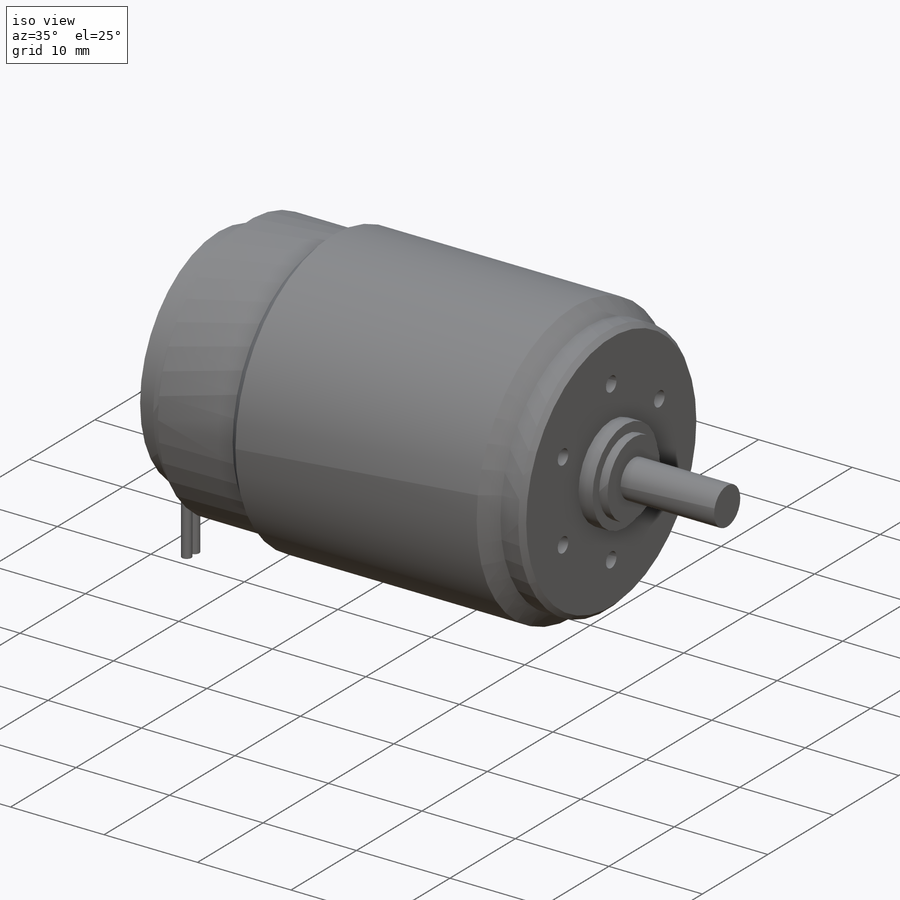
[diagram: iso view]
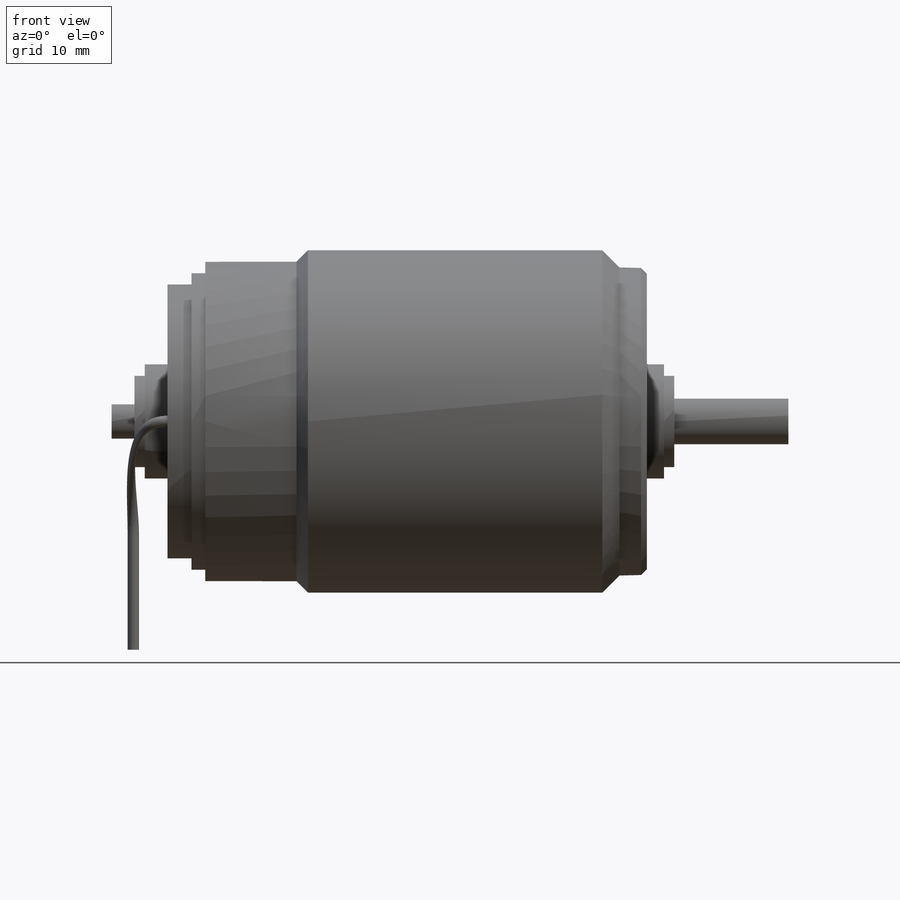
[diagram: front view]
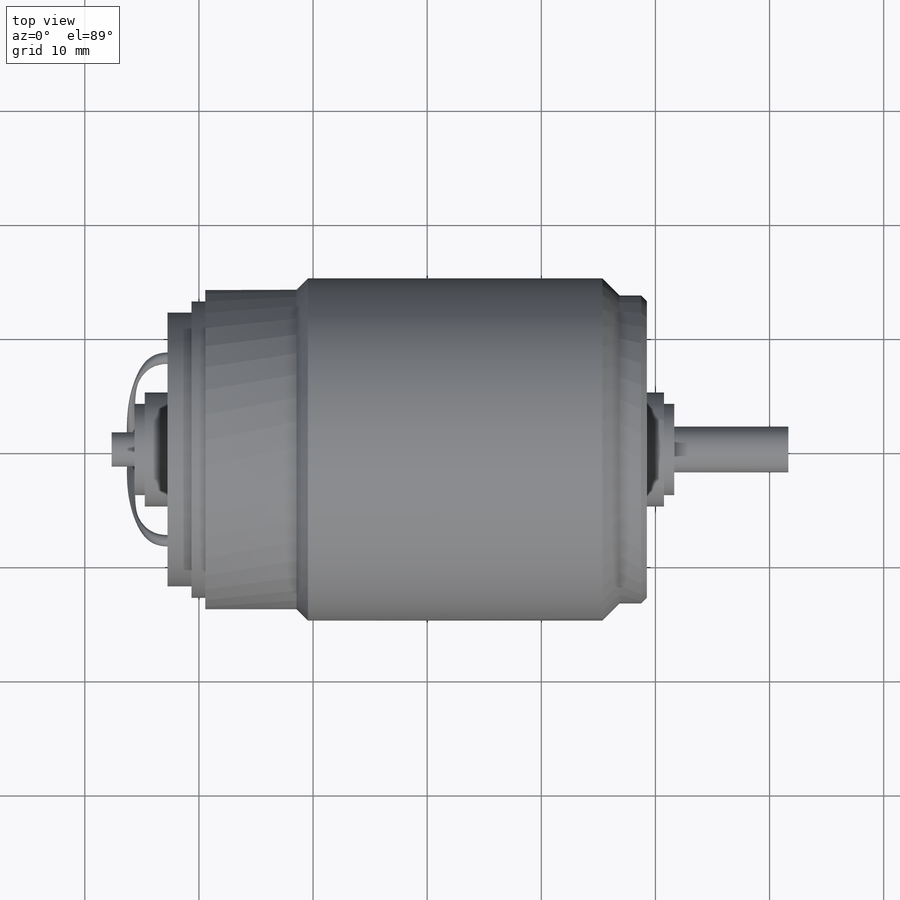
[diagram: top view]
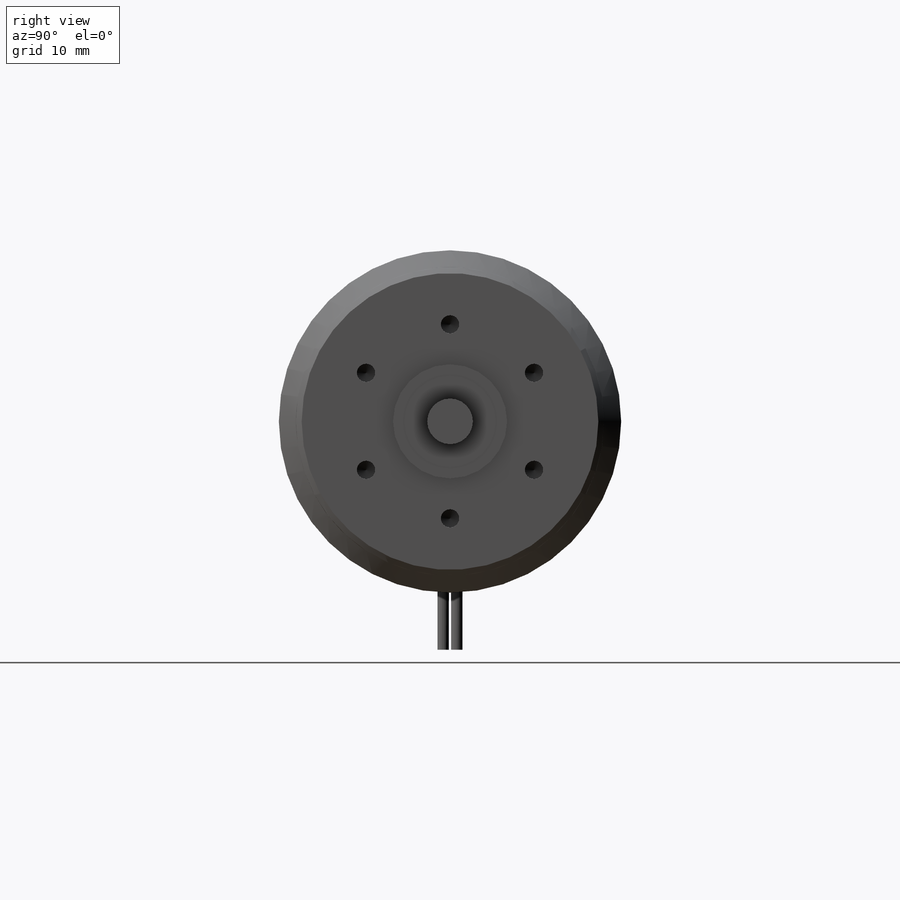
[diagram: right view]
SOLIDWORKS PART (.sldprt)
format: sldprt  version: not decoded by parser v0  size: 507,904 bytes
history: native  units: mm
features: sketch x8, plane x4, chamfer x3, pattern_circular x3, hole x2, thread x2, material x1, revolve x1, cut_extrude x1, extrude x1, mirror x1 (+8 scaffold rows collapsed)
feature tree (35):
  scaffold x8  (default folders/planes/origin — collapsed)
  material  "Matériau <non spécifié>"
  plane  "Plan de face"
  plane  "Plan de dessus"
  plane  "Plan de droite"
  sketch  "Esquisse1"  dims[c1.D1=28.3mm c1.D2=2.4mm c1.D3=1.5mm c1.D4=10.0mm c1.D5=2.4mm c1.D6=11.3mm c1.D7=2.0mm c1.D8=6.0mm c1.D9=8.9mm c1.D10=5.0mm c1.D11=1.2mm c1.D12=8.0mm c2.D10=4.0mm c2.D13=8.0mm c2.D14=10.0mm c2.D15=27.0mm c2.D16=30.0mm c2.D17=3.0mm c2.D18=8.0mm c2.D19=10.0mm c2.D20=24.0mm c2.D21=26.0mm c2.D22=28.0mm]
  revolve  "Révolution1"  Angle=360deg
  chamfer  "Chanfrein1"  Distance=1mm Angle=45deg
  chamfer  "Chanfrein2"  Distance=1.5mm Angle=45deg
  chamfer  "Chanfrein3"  Distance=0.5mm Angle=45deg
  hole  "Trou taraudé M21"  Diameter=1.6mm Depth=4.7mm
  sketch  "Esquisse3D1"  dims[D1=8.5mm]
  sketch  "Esquisse2"  dims[hole-wizard template sketch: 47 standard entries collapsed; hole parameters kept: c15.Profondeur du trou pour taraudage=4.7mm c15.D3=~14.816244mm c15.Angle de pointe=118.0deg]
  thread  "Filetage de perçage1"  Diameter=3.5mm  [1 undecoded]
  pattern_circular  "Répétition circulaire1"  Count=6 Angle=60deg
  hole  "Trou taraudé M22"  [1 undecoded]
  thread  "Esquisse3D2"  Diameter=10mm  [1 undecoded]
  sketch  "Esquisse3"  dims[hole-wizard template sketch: 50 standard entries collapsed; hole parameters above]
  pattern_circular  "Filetage de perçage2"  [2 undecoded]
  pattern_circular  "Filetage de perçage3"  [2 undecoded]
  sketch  "Esquisse4"  dims[D1=1.0mm D2=8.0mm]
  plane  "Plan2"  Offset=10mm
  sketch  "Esquisse6"  dims[c1.D1=1.0mm c1.D2=1.0mm c1.D3=1.0mm c2.D2=3.0mm c2.D3=0.6mm]
  sketch  "Esquisse8"
  cut_extrude  "Extrusion2"  Depth=4mm
  sketch  "Esquisse7"  dims[c1.D1=1.0mm c1.D2=~1.011749mm c1.D3=1.0mm c2.D1=3.0mm c2.D2=0.6mm]
  extrude  "Extrusion1"  Depth=10mm
  mirror  "Symétrie1"
decode coverage: 17 of 22 modeling features carry decoded parameters
note: ~ marks probable driven/reference dimensions
note: 7 parameter values undecoded
note: suppression state not decoded; provenance and decode notes live in map.json
